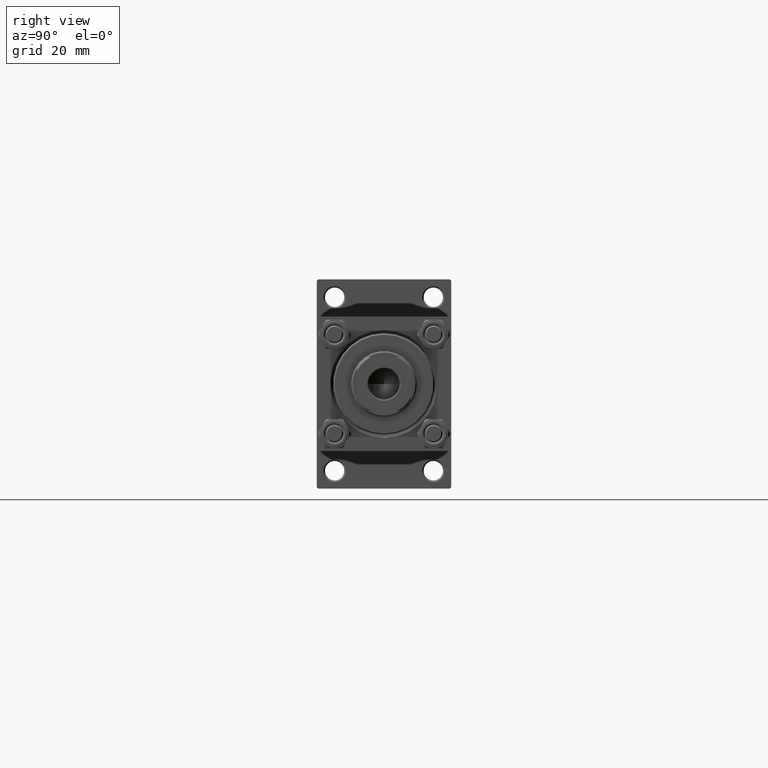
[diagram: clean part render]
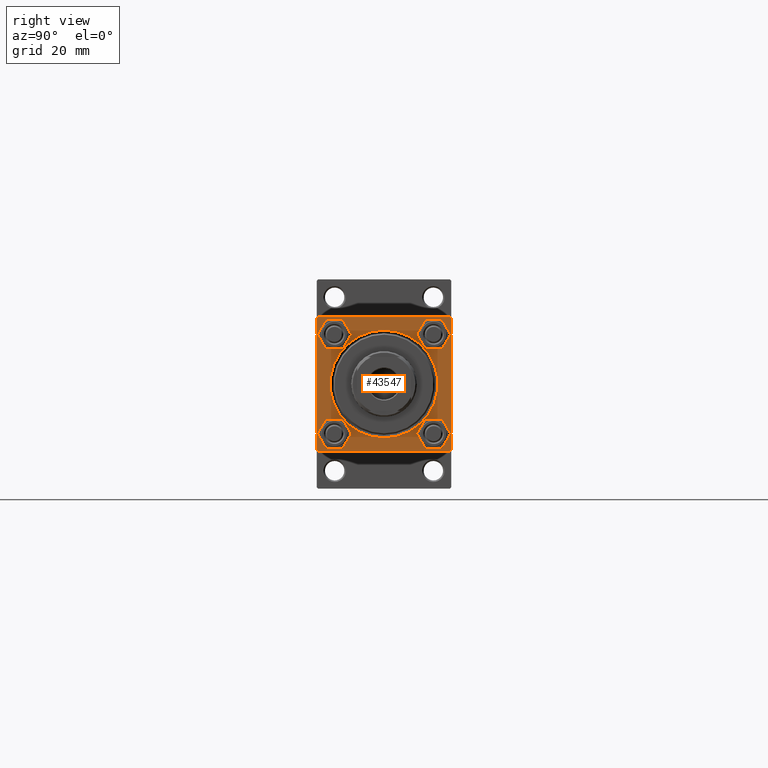
[diagram: same view with one face highlighted and labeled with its STEP entity id]
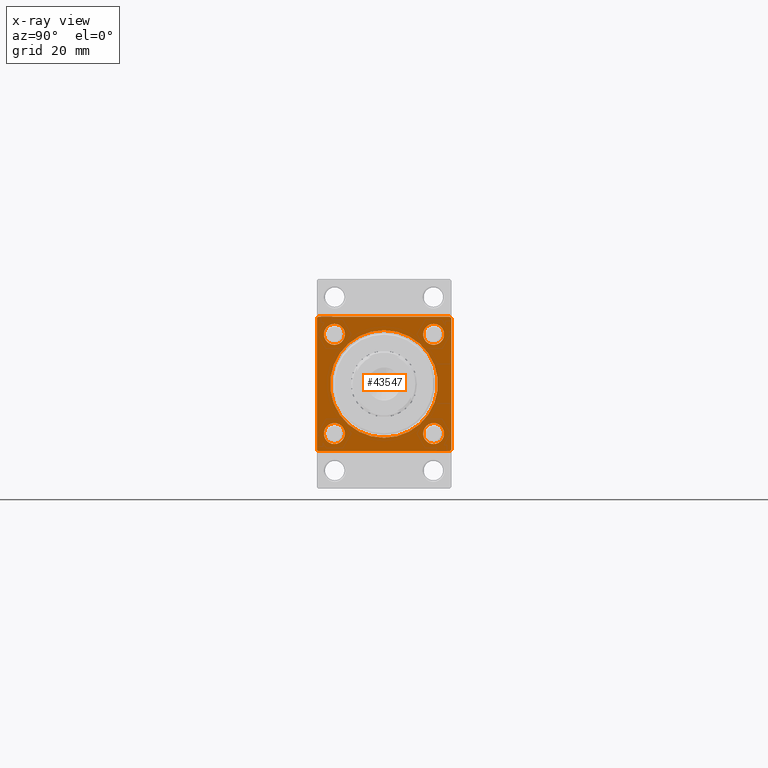
[diagram: x-ray of the same camera — body ghosted, the highlighted face saturated]
A machine part, right view. The second image highlights one B-rep face of the part: STEP entity #43547.
The next image is the same camera in x-ray: the body ghosted, the highlighted face saturated — about 0% of this face is hidden behind the body in this view.
In plain terms, the highlighted planar face has unit normal (-1, 0, 0).
Its self-contained STEP definition (entity closure, byte-faithful):
#739 = DIRECTION ( 'NONE',  ( 0.000000000000000000, 0.000000000000000000, 1.000000000000000000 ) ) ;
#1114 = DIRECTION ( 'NONE',  ( -0.000000000000000000, -0.7071067811865474617, -0.7071067811865474617 ) ) ;
#1610 = FACE_BOUND ( 'NONE', #19783, .T. ) ;
#1651 = VECTOR ( 'NONE', #18646, 1000.000000000000000 ) ;
#1856 = VERTEX_POINT ( 'NONE', #44043 ) ;
#1879 = VERTEX_POINT ( 'NONE', #43551 ) ;
#2184 = VERTEX_POINT ( 'NONE', #14969 ) ;
#2508 = EDGE_LOOP ( 'NONE', ( #35181, #49118 ) ) ;
#2610 = FACE_BOUND ( 'NONE', #7831, .T. ) ;
#3082 = ORIENTED_EDGE ( 'NONE', *, *, #4145, .T. ) ;
#3123 = LINE ( 'NONE', #26395, #42675 ) ;
#3197 = DIRECTION ( 'NONE',  ( -1.000000000000000000, 0.000000000000000000, -0.000000000000000000 ) ) ;
#3343 = VECTOR ( 'NONE', #30636, 1000.000000000000000 ) ;
#3357 = EDGE_CURVE ( 'NONE', #40893, #12876, #10527, .T. ) ;
#3575 = CARTESIAN_POINT ( 'NONE',  ( 203.0000000000000000, 22.50000000000000355, 22.50000000000000355 ) ) ;
#4143 = AXIS2_PLACEMENT_3D ( 'NONE', #24673, #43372, #21145 ) ;
#4145 = EDGE_CURVE ( 'NONE', #2184, #20535, #35191, .T. ) ;
#4406 = CARTESIAN_POINT ( 'NONE',  ( 203.0000000000000000, -16.59999999999999076, 13.10000000000000320 ) ) ;
#4425 = VERTEX_POINT ( 'NONE', #37391 ) ;
#4587 = CARTESIAN_POINT ( 'NONE',  ( 203.0000000000000000, -22.49999999999999645, 22.49999999999999289 ) ) ;
#4757 = EDGE_CURVE ( 'NONE', #12876, #40893, #30749, .T. ) ;
#5175 = CIRCLE ( 'NONE', #16526, 3.500000000000003109 ) ;
#5392 = VERTEX_POINT ( 'NONE', #24793 ) ;
#5609 = EDGE_CURVE ( 'NONE', #25815, #17317, #11408, .T. ) ;
#5727 = ORIENTED_EDGE ( 'NONE', *, *, #24316, .F. ) ;
#5914 = DIRECTION ( 'NONE',  ( -0.000000000000000000, 0.000000000000000000, 1.000000000000000000 ) ) ;
#6132 = EDGE_CURVE ( 'NONE', #25102, #1879, #26356, .T. ) ;
#6408 = FACE_BOUND ( 'NONE', #12958, .T. ) ;
#6514 = AXIS2_PLACEMENT_3D ( 'NONE', #42437, #15667, #49751 ) ;
#7527 = CARTESIAN_POINT ( 'NONE',  ( 203.0000000000000000, -22.49999999999999645, -21.99999999999995026 ) ) ;
#7610 = EDGE_CURVE ( 'NONE', #19949, #5392, #23617, .T. ) ;
#7635 = DIRECTION ( 'NONE',  ( 0.000000000000000000, 0.000000000000000000, 1.000000000000000000 ) ) ;
#7753 = CARTESIAN_POINT ( 'NONE',  ( 203.0000000000000000, 16.59999999999999787, 20.10000000000000853 ) ) ;
#7831 = EDGE_LOOP ( 'NONE', ( #36823, #42840 ) ) ;
#8108 = EDGE_CURVE ( 'NONE', #26258, #4425, #42937, .T. ) ;
#8352 = DIRECTION ( 'NONE',  ( 0.000000000000000000, 0.000000000000000000, 1.000000000000000000 ) ) ;
#9019 = ORIENTED_EDGE ( 'NONE', *, *, #4757, .T. ) ;
#9138 = EDGE_CURVE ( 'NONE', #1856, #42303, #38154, .T. ) ;
#9252 = EDGE_CURVE ( 'NONE', #5392, #19949, #22823, .T. ) ;
#9564 = EDGE_CURVE ( 'NONE', #4425, #26258, #5175, .T. ) ;
#9750 = AXIS2_PLACEMENT_3D ( 'NONE', #20137, #47891, #35295 ) ;
#9943 = DIRECTION ( 'NONE',  ( 0.000000000000000000, 0.000000000000000000, 1.000000000000000000 ) ) ;
#10464 = PLANE ( 'NONE',  #27349 ) ;
#10527 = CIRCLE ( 'NONE', #6514, 3.500000000000003109 ) ;
#10653 = DIRECTION ( 'NONE',  ( 0.000000000000000000, 0.000000000000000000, 1.000000000000000000 ) ) ;
#11408 = CIRCLE ( 'NONE', #4143, 3.500000000000003109 ) ;
#11931 = CARTESIAN_POINT ( 'NONE',  ( 203.0000000000000000, 0.000000000000000000, 0.000000000000000000 ) ) ;
#12168 = DIRECTION ( 'NONE',  ( 0.000000000000000000, 0.000000000000000000, 1.000000000000000000 ) ) ;
#12876 = VERTEX_POINT ( 'NONE', #7753 ) ;
#12958 = EDGE_LOOP ( 'NONE', ( #39122, #9019 ) ) ;
#13159 = AXIS2_PLACEMENT_3D ( 'NONE', #14438, #21522, #10653 ) ;
#13258 = DIRECTION ( 'NONE',  ( -1.000000000000000000, 0.000000000000000000, -0.000000000000000000 ) ) ;
#13808 = VECTOR ( 'NONE', #30542, 1000.000000000000000 ) ;
#14438 = CARTESIAN_POINT ( 'NONE',  ( 203.0000000000000000, -16.59999999999999076, -16.60000000000000853 ) ) ;
#14969 = CARTESIAN_POINT ( 'NONE',  ( 203.0000000000000000, -22.49999999999999645, 21.99999999999999289 ) ) ;
#15667 = DIRECTION ( 'NONE',  ( -1.000000000000000000, 0.000000000000000000, -0.000000000000000000 ) ) ;
#16526 = AXIS2_PLACEMENT_3D ( 'NONE', #39924, #35384, #739 ) ;
#17317 = VERTEX_POINT ( 'NONE', #4406 ) ;
#17384 = ORIENTED_EDGE ( 'NONE', *, *, #9138, .T. ) ;
#17541 = FACE_OUTER_BOUND ( 'NONE', #26730, .T. ) ;
#17825 = CARTESIAN_POINT ( 'NONE',  ( 203.0000000000000000, -16.59999999999999076, 20.10000000000000853 ) ) ;
#18632 = AXIS2_PLACEMENT_3D ( 'NONE', #23042, #30626, #12168 ) ;
#18636 = ORIENTED_EDGE ( 'NONE', *, *, #48019, .T. ) ;
#18646 = DIRECTION ( 'NONE',  ( 0.000000000000000000, 0.7071067811865426878, -0.7071067811865524577 ) ) ;
#18684 = LINE ( 'NONE', #34110, #13808 ) ;
#18908 = CARTESIAN_POINT ( 'NONE',  ( 203.0000000000000000, 16.59999999999999787, 13.10000000000000142 ) ) ;
#19783 = EDGE_LOOP ( 'NONE', ( #26648, #25503 ) ) ;
#19938 = CARTESIAN_POINT ( 'NONE',  ( 203.0000000000000000, 16.59999999999999787, -13.10000000000000142 ) ) ;
#19949 = VERTEX_POINT ( 'NONE', #44864 ) ;
#20137 = CARTESIAN_POINT ( 'NONE',  ( 203.0000000000000000, 16.59999999999999787, 16.60000000000000497 ) ) ;
#20376 = AXIS2_PLACEMENT_3D ( 'NONE', #48583, #29145, #9943 ) ;
#20535 = VERTEX_POINT ( 'NONE', #7527 ) ;
#20734 = VERTEX_POINT ( 'NONE', #27414 ) ;
#21145 = DIRECTION ( 'NONE',  ( 0.000000000000000000, 0.000000000000000000, 1.000000000000000000 ) ) ;
#21500 = DIRECTION ( 'NONE',  ( -0.000000000000000000, 0.7071067811865474617, 0.7071067811865474617 ) ) ;
#21522 = DIRECTION ( 'NONE',  ( -1.000000000000000000, 0.000000000000000000, -0.000000000000000000 ) ) ;
#22224 = EDGE_CURVE ( 'NONE', #40578, #1879, #47762, .T. ) ;
#22468 = AXIS2_PLACEMENT_3D ( 'NONE', #42216, #46482, #8352 ) ;
#22642 = LINE ( 'NONE', #45119, #36174 ) ;
#22823 = CIRCLE ( 'NONE', #13159, 3.500000000000003109 ) ;
#23042 = CARTESIAN_POINT ( 'NONE',  ( 203.0000000000000000, 0.000000000000000000, 0.000000000000000000 ) ) ;
#23153 = ORIENTED_EDGE ( 'NONE', *, *, #39851, .T. ) ;
#23617 = CIRCLE ( 'NONE', #46969, 3.500000000000003109 ) ;
#24316 = EDGE_CURVE ( 'NONE', #40578, #37008, #22642, .T. ) ;
#24673 = CARTESIAN_POINT ( 'NONE',  ( 203.0000000000000000, -16.59999999999999076, 16.60000000000000853 ) ) ;
#24784 = CARTESIAN_POINT ( 'NONE',  ( 203.0000000000000000, 22.50000000000000355, -21.99999999999999645 ) ) ;
#24793 = CARTESIAN_POINT ( 'NONE',  ( 203.0000000000000000, -16.59999999999999076, -13.10000000000000320 ) ) ;
#24873 = FACE_BOUND ( 'NONE', #31055, .T. ) ;
#25102 = VERTEX_POINT ( 'NONE', #29564 ) ;
#25503 = ORIENTED_EDGE ( 'NONE', *, *, #5609, .T. ) ;
#25705 = ORIENTED_EDGE ( 'NONE', *, *, #48596, .T. ) ;
#25815 = VERTEX_POINT ( 'NONE', #17825 ) ;
#26258 = VERTEX_POINT ( 'NONE', #19938 ) ;
#26356 = LINE ( 'NONE', #3575, #3343 ) ;
#26395 = CARTESIAN_POINT ( 'NONE',  ( 203.0000000000000000, 22.00000000000000355, 22.50000000000000355 ) ) ;
#26648 = ORIENTED_EDGE ( 'NONE', *, *, #41567, .T. ) ;
#26730 = EDGE_LOOP ( 'NONE', ( #3082, #25705, #5727, #41853, #47426, #23153, #30477, #47151 ) ) ;
#26855 = DIRECTION ( 'NONE',  ( -1.000000000000000000, 0.000000000000000000, -0.000000000000000000 ) ) ;
#27091 = CARTESIAN_POINT ( 'NONE',  ( 203.0000000000000000, 22.00000000000000355, 22.50000000000000355 ) ) ;
#27349 = AXIS2_PLACEMENT_3D ( 'NONE', #36748, #13258, #5914 ) ;
#27414 = CARTESIAN_POINT ( 'NONE',  ( 203.0000000000000000, -21.99999999999998224, 22.49999999999999289 ) ) ;
#27504 = CIRCLE ( 'NONE', #18632, 18.00000000000001421 ) ;
#29145 = DIRECTION ( 'NONE',  ( -1.000000000000000000, 0.000000000000000000, -0.000000000000000000 ) ) ;
#29564 = CARTESIAN_POINT ( 'NONE',  ( 203.0000000000000000, 22.50000000000000355, 22.00000000000000355 ) ) ;
#30185 = EDGE_CURVE ( 'NONE', #33597, #20734, #18684, .T. ) ;
#30477 = ORIENTED_EDGE ( 'NONE', *, *, #30185, .T. ) ;
#30542 = DIRECTION ( 'NONE',  ( 0.000000000000000000, -1.000000000000000000, -2.312964634635742957E-16 ) ) ;
#30626 = DIRECTION ( 'NONE',  ( -1.000000000000000000, 0.000000000000000000, -0.000000000000000000 ) ) ;
#30636 = DIRECTION ( 'NONE',  ( 0.000000000000000000, 0.000000000000000000, -1.000000000000000000 ) ) ;
#30749 = CIRCLE ( 'NONE', #9750, 3.500000000000003109 ) ;
#30898 = AXIS2_PLACEMENT_3D ( 'NONE', #11931, #26855, #7635 ) ;
#31055 = EDGE_LOOP ( 'NONE', ( #18636, #17384 ) ) ;
#31394 = DIRECTION ( 'NONE',  ( 0.000000000000000000, 0.000000000000000000, -1.000000000000000000 ) ) ;
#32999 = VECTOR ( 'NONE', #21500, 1000.000000000000114 ) ;
#33597 = VERTEX_POINT ( 'NONE', #27091 ) ;
#33818 = DIRECTION ( 'NONE',  ( 0.000000000000000000, 0.000000000000000000, 1.000000000000000000 ) ) ;
#33990 = DIRECTION ( 'NONE',  ( 0.000000000000000000, -0.7071067811865474617, 0.7071067811865474617 ) ) ;
#34110 = CARTESIAN_POINT ( 'NONE',  ( 203.0000000000000000, 22.50000000000000355, 22.50000000000000355 ) ) ;
#34549 = EDGE_CURVE ( 'NONE', #20734, #2184, #46595, .T. ) ;
#34577 = CIRCLE ( 'NONE', #22468, 3.500000000000003109 ) ;
#35181 = ORIENTED_EDGE ( 'NONE', *, *, #9564, .T. ) ;
#35191 = LINE ( 'NONE', #4587, #49273 ) ;
#35295 = DIRECTION ( 'NONE',  ( 0.000000000000000000, 0.000000000000000000, 1.000000000000000000 ) ) ;
#35384 = DIRECTION ( 'NONE',  ( -1.000000000000000000, 0.000000000000000000, -0.000000000000000000 ) ) ;
#36174 = VECTOR ( 'NONE', #37562, 1000.000000000000000 ) ;
#36256 = FACE_BOUND ( 'NONE', #2508, .T. ) ;
#36748 = CARTESIAN_POINT ( 'NONE',  ( 203.0000000000000000, 0.000000000000000000, 0.000000000000000000 ) ) ;
#36823 = ORIENTED_EDGE ( 'NONE', *, *, #7610, .T. ) ;
#37008 = VERTEX_POINT ( 'NONE', #47424 ) ;
#37391 = CARTESIAN_POINT ( 'NONE',  ( 203.0000000000000000, 16.59999999999999787, -20.10000000000000853 ) ) ;
#37562 = DIRECTION ( 'NONE',  ( 0.000000000000000000, -1.000000000000000000, -7.709882115452476934E-17 ) ) ;
#38154 = CIRCLE ( 'NONE', #30898, 18.00000000000001421 ) ;
#38333 = CARTESIAN_POINT ( 'NONE',  ( 203.0000000000000000, -21.99999999999996803, -22.50000000000000000 ) ) ;
#38482 = CARTESIAN_POINT ( 'NONE',  ( 203.0000000000000000, 0.000000000000000000, -18.00000000000001421 ) ) ;
#39122 = ORIENTED_EDGE ( 'NONE', *, *, #3357, .T. ) ;
#39851 = EDGE_CURVE ( 'NONE', #25102, #33597, #3123, .T. ) ;
#39924 = CARTESIAN_POINT ( 'NONE',  ( 203.0000000000000000, 16.59999999999999787, -16.60000000000000497 ) ) ;
#40578 = VERTEX_POINT ( 'NONE', #46024 ) ;
#40893 = VERTEX_POINT ( 'NONE', #18908 ) ;
#41375 = VECTOR ( 'NONE', #1114, 1000.000000000000114 ) ;
#41567 = EDGE_CURVE ( 'NONE', #17317, #25815, #34577, .T. ) ;
#41853 = ORIENTED_EDGE ( 'NONE', *, *, #22224, .T. ) ;
#42216 = CARTESIAN_POINT ( 'NONE',  ( 203.0000000000000000, -16.59999999999999076, 16.60000000000000853 ) ) ;
#42303 = VERTEX_POINT ( 'NONE', #38482 ) ;
#42437 = CARTESIAN_POINT ( 'NONE',  ( 203.0000000000000000, 16.59999999999999787, 16.60000000000000497 ) ) ;
#42675 = VECTOR ( 'NONE', #33990, 1000.000000000000114 ) ;
#42840 = ORIENTED_EDGE ( 'NONE', *, *, #9252, .T. ) ;
#42937 = CIRCLE ( 'NONE', #20376, 3.500000000000003109 ) ;
#43372 = DIRECTION ( 'NONE',  ( -1.000000000000000000, 0.000000000000000000, -0.000000000000000000 ) ) ;
#43547 = ADVANCED_FACE ( 'NONE', ( #2610, #36256, #6408, #1610, #24873, #17541 ), #10464, .F. ) ;
#43551 = CARTESIAN_POINT ( 'NONE',  ( 203.0000000000000000, 22.50000000000000355, -21.99999999999998224 ) ) ;
#44043 = CARTESIAN_POINT ( 'NONE',  ( 203.0000000000000000, 2.204364238465237794E-15, 18.00000000000001421 ) ) ;
#44673 = CARTESIAN_POINT ( 'NONE',  ( 203.0000000000000000, -16.59999999999999076, -16.60000000000000853 ) ) ;
#44864 = CARTESIAN_POINT ( 'NONE',  ( 203.0000000000000000, -16.59999999999999076, -20.10000000000000853 ) ) ;
#45119 = CARTESIAN_POINT ( 'NONE',  ( 203.0000000000000000, 22.50000000000000355, -22.49999999999999645 ) ) ;
#45902 = LINE ( 'NONE', #38333, #1651 ) ;
#46024 = CARTESIAN_POINT ( 'NONE',  ( 203.0000000000000000, 22.00000000000000355, -22.49999999999999645 ) ) ;
#46353 = CARTESIAN_POINT ( 'NONE',  ( 203.0000000000000000, -22.49999999999999645, 21.99999999999999289 ) ) ;
#46482 = DIRECTION ( 'NONE',  ( -1.000000000000000000, 0.000000000000000000, -0.000000000000000000 ) ) ;
#46595 = LINE ( 'NONE', #46353, #41375 ) ;
#46969 = AXIS2_PLACEMENT_3D ( 'NONE', #44673, #3197, #33818 ) ;
#47151 = ORIENTED_EDGE ( 'NONE', *, *, #34549, .T. ) ;
#47424 = CARTESIAN_POINT ( 'NONE',  ( 203.0000000000000000, -21.99999999999995381, -22.50000000000000000 ) ) ;
#47426 = ORIENTED_EDGE ( 'NONE', *, *, #6132, .F. ) ;
#47762 = LINE ( 'NONE', #24784, #32999 ) ;
#47891 = DIRECTION ( 'NONE',  ( -1.000000000000000000, 0.000000000000000000, -0.000000000000000000 ) ) ;
#48019 = EDGE_CURVE ( 'NONE', #42303, #1856, #27504, .T. ) ;
#48583 = CARTESIAN_POINT ( 'NONE',  ( 203.0000000000000000, 16.59999999999999787, -16.60000000000000497 ) ) ;
#48596 = EDGE_CURVE ( 'NONE', #20535, #37008, #45902, .T. ) ;
#49118 = ORIENTED_EDGE ( 'NONE', *, *, #8108, .T. ) ;
#49273 = VECTOR ( 'NONE', #31394, 1000.000000000000000 ) ;
#49751 = DIRECTION ( 'NONE',  ( 0.000000000000000000, 0.000000000000000000, 1.000000000000000000 ) ) ;